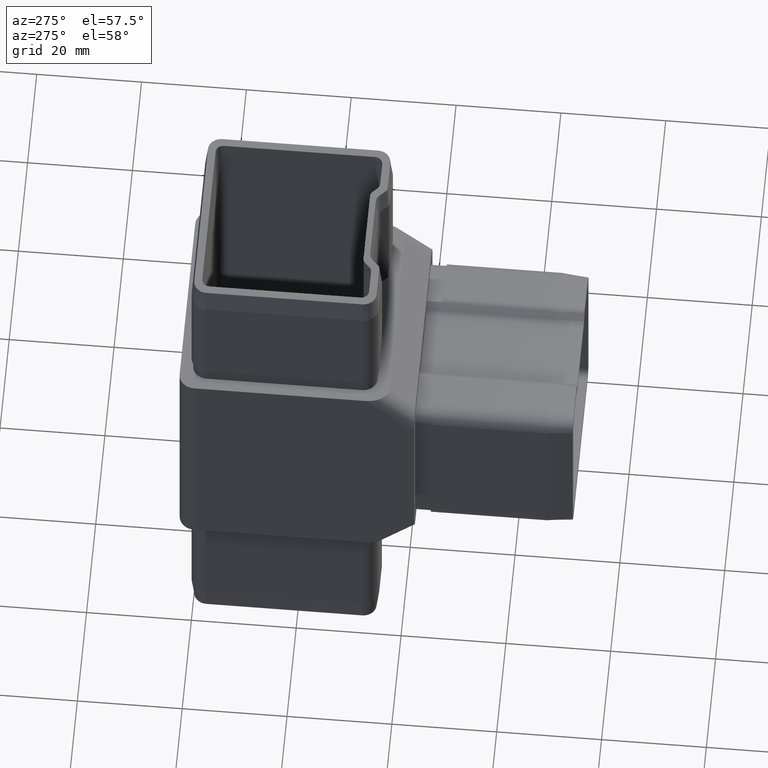
[diagram: clean part render]
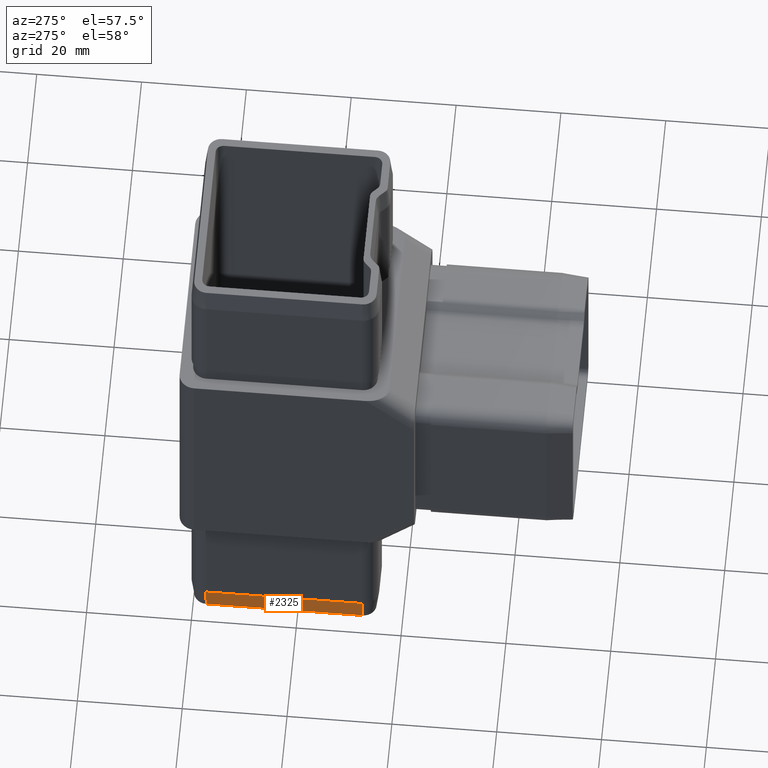
[diagram: same view with one face highlighted and labeled with its STEP entity id]
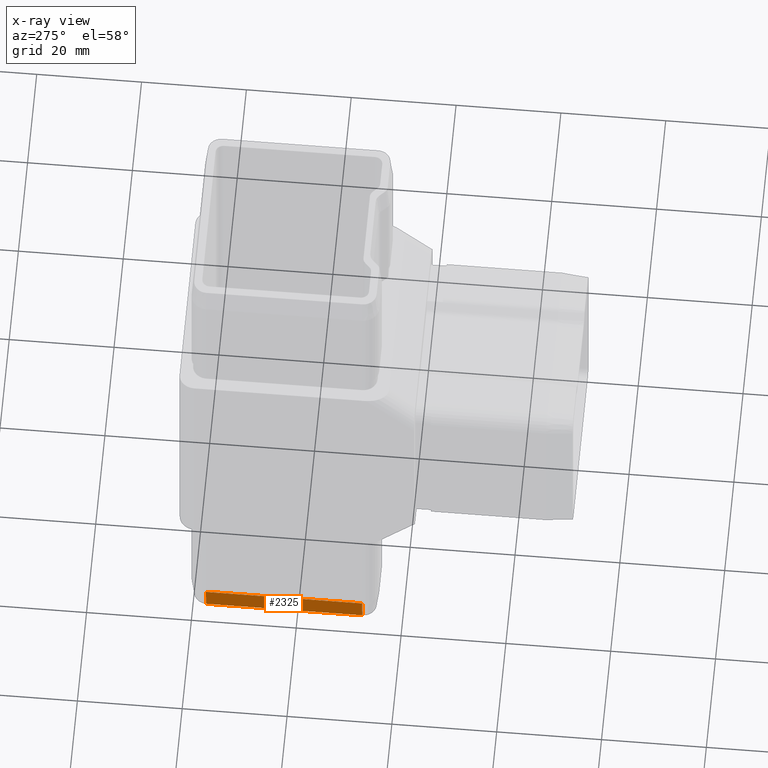
[diagram: x-ray of the same camera — body ghosted, the highlighted face saturated]
A machine part, auxiliary view. The second image highlights one B-rep face of the part: STEP entity #2325.
The next image is the same camera in x-ray: the body ghosted, the highlighted face saturated — about 0% of this face is hidden behind the body in this view.
In plain terms, the highlighted planar face has unit normal (-0.995, 0, -0.0995).
Its self-contained STEP definition (entity closure, byte-faithful):
#624 = LINE ( 'NONE', #5899, #12458 ) ;
#1084 = EDGE_CURVE ( 'NONE', #3082, #7402, #624, .T. ) ;
#1858 = EDGE_CURVE ( 'NONE', #7402, #7909, #18230, .T. ) ;
#2325 = ADVANCED_FACE ( 'NONE', ( #6392 ), #5373, .T. ) ;
#3082 = VERTEX_POINT ( 'NONE', #5993 ) ;
#3327 = VECTOR ( 'NONE', #9693, 1000.000000000000100 ) ;
#3601 = VECTOR ( 'NONE', #8362, 1000.000000000000100 ) ;
#3726 = CARTESIAN_POINT ( 'NONE',  ( -17.40000000000000200, -12.39999999999999500, -55.00000000000000700 ) ) ;
#3816 = DIRECTION ( 'NONE',  ( -0.9950371902099891500, 0.0000000000000000000, -0.09950371902099892900 ) ) ;
#5166 = VECTOR ( 'NONE', #19059, 1000.000000000000000 ) ;
#5373 = PLANE ( 'NONE',  #12338 ) ;
#5899 = CARTESIAN_POINT ( 'NONE',  ( -17.40000000000000200, -12.39999999999999500, -55.00000000000000700 ) ) ;
#5993 = CARTESIAN_POINT ( 'NONE',  ( -17.40000000000000200, -12.39999999999999500, -55.00000000000000700 ) ) ;
#6392 = FACE_OUTER_BOUND ( 'NONE', #7730, .T. ) ;
#6792 = CARTESIAN_POINT ( 'NONE',  ( -17.40000000000000200, -12.39999999999999500, -55.00000000000000700 ) ) ;
#6877 = CARTESIAN_POINT ( 'NONE',  ( -17.40000000000000200, 17.40000000000000200, -55.00000000000000700 ) ) ;
#7402 = VERTEX_POINT ( 'NONE', #8364 ) ;
#7730 = EDGE_LOOP ( 'NONE', ( #8879, #18590, #13948, #10094 ) ) ;
#7909 = VERTEX_POINT ( 'NONE', #8401 ) ;
#8116 = VERTEX_POINT ( 'NONE', #13530 ) ;
#8362 = DIRECTION ( 'NONE',  ( -0.09950371902099890100, -4.779376310158076700E-016, 0.9950371902099890400 ) ) ;
#8364 = CARTESIAN_POINT ( 'NONE',  ( -17.40000000000000200, 17.40000000000000200, -55.00000000000000700 ) ) ;
#8401 = CARTESIAN_POINT ( 'NONE',  ( -17.90000000000000600, 17.39999999999999900, -50.00000000000000000 ) ) ;
#8879 = ORIENTED_EDGE ( 'NONE', *, *, #15887, .T. ) ;
#9693 = DIRECTION ( 'NONE',  ( -0.09950371902099890100, -4.779376310158076700E-016, 0.9950371902099890400 ) ) ;
#9809 = LINE ( 'NONE', #3726, #3327 ) ;
#10094 = ORIENTED_EDGE ( 'NONE', *, *, #1084, .F. ) ;
#11809 = EDGE_CURVE ( 'NONE', #8116, #7909, #15836, .T. ) ;
#12338 = AXIS2_PLACEMENT_3D ( 'NONE', #6792, #3816, #15735 ) ;
#12458 = VECTOR ( 'NONE', #13092, 1000.000000000000000 ) ;
#13092 = DIRECTION ( 'NONE',  ( 0.0000000000000000000, 1.000000000000000000, 0.0000000000000000000 ) ) ;
#13530 = CARTESIAN_POINT ( 'NONE',  ( -17.90000000000000600, -12.39999999999999900, -50.00000000000000000 ) ) ;
#13948 = ORIENTED_EDGE ( 'NONE', *, *, #1858, .F. ) ;
#14787 = CARTESIAN_POINT ( 'NONE',  ( -17.90000000000000600, -12.39999999999999900, -50.00000000000000000 ) ) ;
#15735 = DIRECTION ( 'NONE',  ( -0.09950371902099891500, 0.0000000000000000000, 0.9950371902099890400 ) ) ;
#15836 = LINE ( 'NONE', #14787, #5166 ) ;
#15887 = EDGE_CURVE ( 'NONE', #3082, #8116, #9809, .T. ) ;
#18230 = LINE ( 'NONE', #6877, #3601 ) ;
#18590 = ORIENTED_EDGE ( 'NONE', *, *, #11809, .T. ) ;
#19059 = DIRECTION ( 'NONE',  ( 0.0000000000000000000, 1.000000000000000000, 0.0000000000000000000 ) ) ;